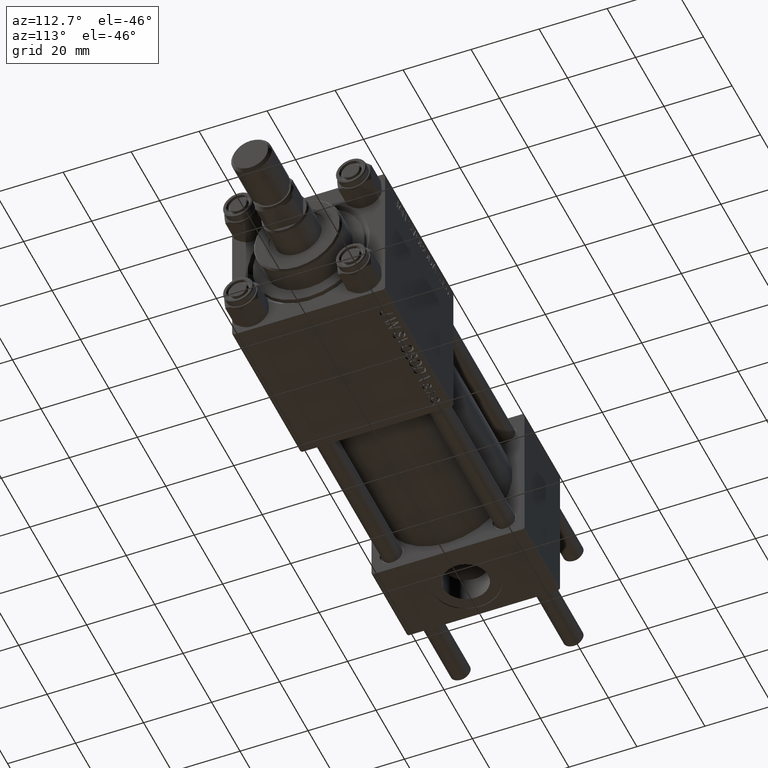
[diagram: clean part render]
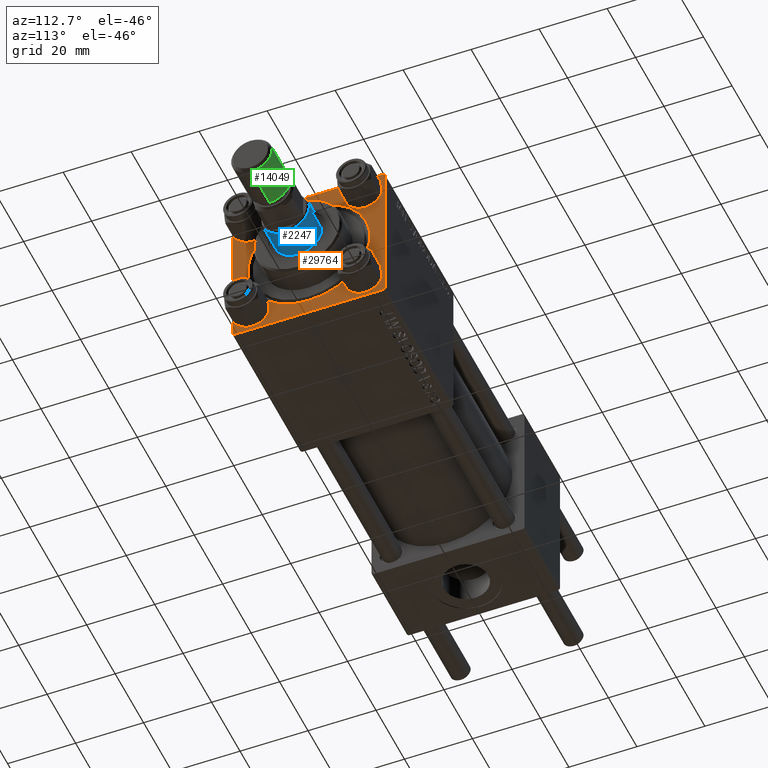
[diagram: same view with three faces highlighted in distinct colors, each labeled with its STEP entity id]
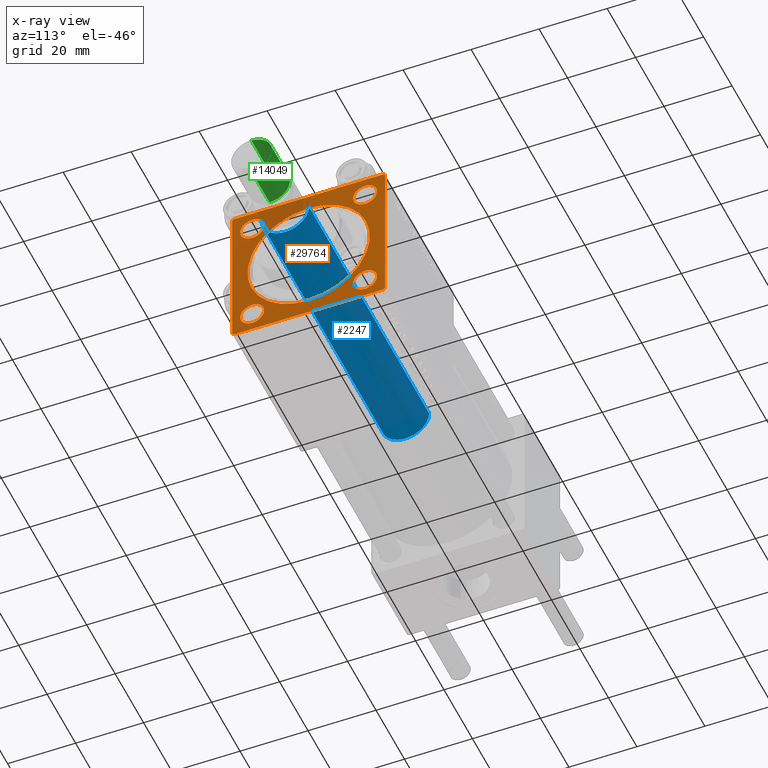
[diagram: x-ray of the same camera — body ghosted, the three highlighted faces saturated]
A machine part, auxiliary view with three faces highlighted in distinct colors.
The next image is the same camera in x-ray (body ghosted, the three faces saturated) — at least one of them is partly hidden behind the body in this view.
Their STEP definitions:

[orange] entity #29764 — the highlighted planar face has unit normal (-1, 0, 0).
#218 = CARTESIAN_POINT ( 'NONE',  ( 123.0000000000000142, 2.204364238465235822E-15, 18.00000000000000355 ) ) ;
#858 = EDGE_CURVE ( 'NONE', #48951, #47986, #3056, .T. ) ;
#1678 = DIRECTION ( 'NONE',  ( -1.000000000000000000, 0.000000000000000000, -0.000000000000000000 ) ) ;
#1804 = CARTESIAN_POINT ( 'NONE',  ( 123.0000000000000142, 16.59999999999999787, -20.10000000000003340 ) ) ;
#2501 = CIRCLE ( 'NONE', #9803, 3.500000000000031086 ) ;
#2505 = CARTESIAN_POINT ( 'NONE',  ( 123.0000000000000142, 16.59999999999999787, -13.09999999999997300 ) ) ;
#2852 = VECTOR ( 'NONE', #12316, 1000.000000000000000 ) ;
#3056 = CIRCLE ( 'NONE', #46136, 3.500000000000031086 ) ;
#3155 = DIRECTION ( 'NONE',  ( 0.000000000000000000, -1.000000000000000000, -7.709882115452476934E-17 ) ) ;
#3438 = DIRECTION ( 'NONE',  ( 0.000000000000000000, 0.000000000000000000, 1.000000000000000000 ) ) ;
#4605 = CARTESIAN_POINT ( 'NONE',  ( 123.0000000000000142, -22.49999999999999645, 22.00000000000000711 ) ) ;
#4726 = VERTEX_POINT ( 'NONE', #39717 ) ;
#5089 = FACE_OUTER_BOUND ( 'NONE', #37845, .T. ) ;
#5372 = ORIENTED_EDGE ( 'NONE', *, *, #8153, .T. ) ;
#5396 = CARTESIAN_POINT ( 'NONE',  ( 123.0000000000000142, 0.000000000000000000, 0.000000000000000000 ) ) ;
#5640 = CARTESIAN_POINT ( 'NONE',  ( 123.0000000000000142, -16.59999999999999076, -16.60000000000000853 ) ) ;
#5824 = FACE_BOUND ( 'NONE', #18987, .T. ) ;
#5963 = LINE ( 'NONE', #6454, #20652 ) ;
#6454 = CARTESIAN_POINT ( 'NONE',  ( 123.0000000000000142, -22.49999999999999645, 22.49999999999999289 ) ) ;
#6857 = CIRCLE ( 'NONE', #48261, 3.500000000000031086 ) ;
#7594 = DIRECTION ( 'NONE',  ( 0.000000000000000000, 0.7071067811865425767, -0.7071067811865525687 ) ) ;
#7666 = VERTEX_POINT ( 'NONE', #41502 ) ;
#7851 = CARTESIAN_POINT ( 'NONE',  ( 123.0000000000000142, -21.99999999999998224, -22.50000000000000000 ) ) ;
#8153 = EDGE_CURVE ( 'NONE', #4726, #25916, #31740, .T. ) ;
#8697 = EDGE_CURVE ( 'NONE', #22480, #7666, #24426, .T. ) ;
#8888 = VERTEX_POINT ( 'NONE', #1804 ) ;
#9149 = LINE ( 'NONE', #24655, #10835 ) ;
#9356 = LINE ( 'NONE', #10271, #48504 ) ;
#9803 = AXIS2_PLACEMENT_3D ( 'NONE', #26314, #38025, #10564 ) ;
#10183 = CARTESIAN_POINT ( 'NONE',  ( 123.0000000000000142, 0.000000000000000000, 0.000000000000000000 ) ) ;
#10271 = CARTESIAN_POINT ( 'NONE',  ( 123.0000000000000142, 22.50000000000000355, -22.49999999999999645 ) ) ;
#10525 = ORIENTED_EDGE ( 'NONE', *, *, #28028, .T. ) ;
#10564 = DIRECTION ( 'NONE',  ( 0.000000000000000000, 0.000000000000000000, 1.000000000000000000 ) ) ;
#10835 = VECTOR ( 'NONE', #43765, 1000.000000000000000 ) ;
#12316 = DIRECTION ( 'NONE',  ( -0.000000000000000000, 0.7071067811865573427, 0.7071067811865378028 ) ) ;
#12348 = AXIS2_PLACEMENT_3D ( 'NONE', #5640, #21394, #16575 ) ;
#13031 = CARTESIAN_POINT ( 'NONE',  ( 123.0000000000000142, -16.59999999999999076, -20.10000000000003695 ) ) ;
#13321 = EDGE_CURVE ( 'NONE', #8888, #50221, #2501, .T. ) ;
#14105 = ORIENTED_EDGE ( 'NONE', *, *, #43058, .T. ) ;
#14402 = CIRCLE ( 'NONE', #37150, 3.500000000000031086 ) ;
#14746 = DIRECTION ( 'NONE',  ( -1.000000000000000000, 0.000000000000000000, -0.000000000000000000 ) ) ;
#15387 = VERTEX_POINT ( 'NONE', #27909 ) ;
#15608 = CIRCLE ( 'NONE', #12348, 3.500000000000031086 ) ;
#15788 = DIRECTION ( 'NONE',  ( -0.000000000000000000, -0.7071067811865573427, -0.7071067811865378028 ) ) ;
#16439 = ORIENTED_EDGE ( 'NONE', *, *, #37796, .T. ) ;
#16472 = VERTEX_POINT ( 'NONE', #21689 ) ;
#16575 = DIRECTION ( 'NONE',  ( 0.000000000000000000, 0.000000000000000000, 1.000000000000000000 ) ) ;
#16636 = EDGE_CURVE ( 'NONE', #39798, #16472, #38464, .T. ) ;
#16728 = ORIENTED_EDGE ( 'NONE', *, *, #25736, .T. ) ;
#16926 = EDGE_CURVE ( 'NONE', #42251, #24505, #15608, .T. ) ;
#17017 = FACE_BOUND ( 'NONE', #30584, .T. ) ;
#17198 = VECTOR ( 'NONE', #34381, 1000.000000000000000 ) ;
#17288 = CARTESIAN_POINT ( 'NONE',  ( 123.0000000000000142, -16.59999999999999076, 20.10000000000003695 ) ) ;
#17436 = LINE ( 'NONE', #32952, #33145 ) ;
#17518 = DIRECTION ( 'NONE',  ( 0.000000000000000000, 0.000000000000000000, 1.000000000000000000 ) ) ;
#17857 = EDGE_CURVE ( 'NONE', #33805, #18382, #48167, .T. ) ;
#17905 = EDGE_LOOP ( 'NONE', ( #45095, #14105 ) ) ;
#17922 = CARTESIAN_POINT ( 'NONE',  ( 123.0000000000000142, 0.000000000000000000, -18.00000000000000355 ) ) ;
#18382 = VERTEX_POINT ( 'NONE', #218 ) ;
#18987 = EDGE_LOOP ( 'NONE', ( #23054, #35580 ) ) ;
#19385 = CARTESIAN_POINT ( 'NONE',  ( 123.0000000000000142, 22.00000000000000355, -22.49999999999999645 ) ) ;
#19695 = ORIENTED_EDGE ( 'NONE', *, *, #23823, .T. ) ;
#20194 = LINE ( 'NONE', #47171, #2852 ) ;
#20652 = VECTOR ( 'NONE', #21466, 1000.000000000000000 ) ;
#21355 = CARTESIAN_POINT ( 'NONE',  ( 123.0000000000000142, 16.59999999999999787, -16.60000000000000497 ) ) ;
#21394 = DIRECTION ( 'NONE',  ( -1.000000000000000000, 0.000000000000000000, -0.000000000000000000 ) ) ;
#21466 = DIRECTION ( 'NONE',  ( 0.000000000000000000, 0.000000000000000000, -1.000000000000000000 ) ) ;
#21689 = CARTESIAN_POINT ( 'NONE',  ( 123.0000000000000142, 22.50000000000000355, -21.99999999999999645 ) ) ;
#22040 = DIRECTION ( 'NONE',  ( 0.000000000000000000, 0.000000000000000000, 1.000000000000000000 ) ) ;
#22395 = CARTESIAN_POINT ( 'NONE',  ( 123.0000000000000142, -16.59999999999999076, 13.09999999999997655 ) ) ;
#22480 = VERTEX_POINT ( 'NONE', #47365 ) ;
#22957 = ORIENTED_EDGE ( 'NONE', *, *, #13321, .T. ) ;
#23054 = ORIENTED_EDGE ( 'NONE', *, *, #49269, .T. ) ;
#23371 = CIRCLE ( 'NONE', #34760, 18.00000000000000355 ) ;
#23823 = EDGE_CURVE ( 'NONE', #39798, #47423, #9149, .T. ) ;
#23932 = ORIENTED_EDGE ( 'NONE', *, *, #34009, .T. ) ;
#24253 = EDGE_LOOP ( 'NONE', ( #23932, #32677 ) ) ;
#24426 = LINE ( 'NONE', #4605, #50310 ) ;
#24505 = VERTEX_POINT ( 'NONE', #13031 ) ;
#24655 = CARTESIAN_POINT ( 'NONE',  ( 123.0000000000000142, 21.99999999999996092, 22.50000000000000355 ) ) ;
#25234 = EDGE_CURVE ( 'NONE', #7666, #4726, #5963, .T. ) ;
#25736 = EDGE_CURVE ( 'NONE', #50221, #8888, #6857, .T. ) ;
#25916 = VERTEX_POINT ( 'NONE', #7851 ) ;
#26001 = CARTESIAN_POINT ( 'NONE',  ( 123.0000000000000142, 22.50000000000000355, 22.50000000000000355 ) ) ;
#26314 = CARTESIAN_POINT ( 'NONE',  ( 123.0000000000000142, 16.59999999999999787, -16.60000000000000497 ) ) ;
#27366 = CARTESIAN_POINT ( 'NONE',  ( 123.0000000000000142, -16.59999999999999076, -13.09999999999997655 ) ) ;
#27909 = CARTESIAN_POINT ( 'NONE',  ( 123.0000000000000142, 16.59999999999999787, 13.09999999999997300 ) ) ;
#28028 = EDGE_CURVE ( 'NONE', #47106, #16472, #20194, .T. ) ;
#28198 = PLANE ( 'NONE',  #32971 ) ;
#28389 = DIRECTION ( 'NONE',  ( 0.000000000000000000, -1.000000000000000000, -2.312964634635742957E-16 ) ) ;
#28701 = DIRECTION ( 'NONE',  ( -0.000000000000000000, 0.000000000000000000, 1.000000000000000000 ) ) ;
#28744 = ORIENTED_EDGE ( 'NONE', *, *, #34651, .T. ) ;
#29005 = AXIS2_PLACEMENT_3D ( 'NONE', #44645, #36754, #36503 ) ;
#29103 = CARTESIAN_POINT ( 'NONE',  ( 123.0000000000000142, 16.59999999999999787, 16.60000000000000497 ) ) ;
#29243 = AXIS2_PLACEMENT_3D ( 'NONE', #49262, #42141, #22040 ) ;
#29517 = CARTESIAN_POINT ( 'NONE',  ( 123.0000000000000142, 22.50000000000000355, 21.99999999999997513 ) ) ;
#29764 = ADVANCED_FACE ( 'NONE', ( #5824, #17017, #44253, #32278, #47560, #5089 ), #28198, .F. ) ;
#30584 = EDGE_LOOP ( 'NONE', ( #22957, #16728 ) ) ;
#31209 = EDGE_CURVE ( 'NONE', #47106, #25916, #9356, .T. ) ;
#31740 = LINE ( 'NONE', #46513, #33178 ) ;
#32278 = FACE_BOUND ( 'NONE', #24253, .T. ) ;
#32530 = CARTESIAN_POINT ( 'NONE',  ( 123.0000000000000142, 0.000000000000000000, 0.000000000000000000 ) ) ;
#32677 = ORIENTED_EDGE ( 'NONE', *, *, #858, .T. ) ;
#32952 = CARTESIAN_POINT ( 'NONE',  ( 123.0000000000000142, 22.50000000000000355, 22.50000000000000355 ) ) ;
#32971 = AXIS2_PLACEMENT_3D ( 'NONE', #32530, #48311, #28701 ) ;
#33145 = VECTOR ( 'NONE', #28389, 1000.000000000000000 ) ;
#33178 = VECTOR ( 'NONE', #7594, 999.9999999999998863 ) ;
#33805 = VERTEX_POINT ( 'NONE', #17922 ) ;
#34009 = EDGE_CURVE ( 'NONE', #47986, #48951, #48579, .T. ) ;
#34381 = DIRECTION ( 'NONE',  ( 0.000000000000000000, 0.000000000000000000, -1.000000000000000000 ) ) ;
#34651 = EDGE_CURVE ( 'NONE', #47423, #22480, #17436, .T. ) ;
#34760 = AXIS2_PLACEMENT_3D ( 'NONE', #10183, #14746, #41231 ) ;
#34944 = CIRCLE ( 'NONE', #29243, 3.500000000000031086 ) ;
#35108 = CARTESIAN_POINT ( 'NONE',  ( 123.0000000000000142, 21.99999999999996092, 22.50000000000000355 ) ) ;
#35498 = CARTESIAN_POINT ( 'NONE',  ( 123.0000000000000142, -16.59999999999999076, 16.60000000000000853 ) ) ;
#35580 = ORIENTED_EDGE ( 'NONE', *, *, #16926, .T. ) ;
#36248 = DIRECTION ( 'NONE',  ( -1.000000000000000000, 0.000000000000000000, -0.000000000000000000 ) ) ;
#36503 = DIRECTION ( 'NONE',  ( 0.000000000000000000, 0.000000000000000000, 1.000000000000000000 ) ) ;
#36754 = DIRECTION ( 'NONE',  ( -1.000000000000000000, 0.000000000000000000, -0.000000000000000000 ) ) ;
#37150 = AXIS2_PLACEMENT_3D ( 'NONE', #29103, #36248, #47705 ) ;
#37796 = EDGE_CURVE ( 'NONE', #38109, #15387, #46094, .T. ) ;
#37845 = EDGE_LOOP ( 'NONE', ( #41774, #5372, #42192, #10525, #41081, #19695, #28744, #38311 ) ) ;
#37895 = EDGE_CURVE ( 'NONE', #15387, #38109, #14402, .T. ) ;
#38025 = DIRECTION ( 'NONE',  ( -1.000000000000000000, 0.000000000000000000, -0.000000000000000000 ) ) ;
#38109 = VERTEX_POINT ( 'NONE', #39524 ) ;
#38277 = DIRECTION ( 'NONE',  ( -1.000000000000000000, 0.000000000000000000, -0.000000000000000000 ) ) ;
#38311 = ORIENTED_EDGE ( 'NONE', *, *, #8697, .T. ) ;
#38464 = LINE ( 'NONE', #26001, #17198 ) ;
#39190 = AXIS2_PLACEMENT_3D ( 'NONE', #5396, #48140, #44079 ) ;
#39524 = CARTESIAN_POINT ( 'NONE',  ( 123.0000000000000142, 16.59999999999999787, 20.10000000000003340 ) ) ;
#39717 = CARTESIAN_POINT ( 'NONE',  ( 123.0000000000000142, -22.49999999999999645, -21.99999999999997868 ) ) ;
#39798 = VERTEX_POINT ( 'NONE', #29517 ) ;
#40444 = AXIS2_PLACEMENT_3D ( 'NONE', #43123, #38277, #3438 ) ;
#40943 = DIRECTION ( 'NONE',  ( -1.000000000000000000, 0.000000000000000000, -0.000000000000000000 ) ) ;
#41081 = ORIENTED_EDGE ( 'NONE', *, *, #16636, .F. ) ;
#41231 = DIRECTION ( 'NONE',  ( 0.000000000000000000, 0.000000000000000000, 1.000000000000000000 ) ) ;
#41502 = CARTESIAN_POINT ( 'NONE',  ( 123.0000000000000142, -22.49999999999999645, 22.00000000000000711 ) ) ;
#41774 = ORIENTED_EDGE ( 'NONE', *, *, #25234, .T. ) ;
#42141 = DIRECTION ( 'NONE',  ( -1.000000000000000000, 0.000000000000000000, -0.000000000000000000 ) ) ;
#42192 = ORIENTED_EDGE ( 'NONE', *, *, #31209, .F. ) ;
#42251 = VERTEX_POINT ( 'NONE', #27366 ) ;
#43058 = EDGE_CURVE ( 'NONE', #18382, #33805, #23371, .T. ) ;
#43123 = CARTESIAN_POINT ( 'NONE',  ( 123.0000000000000142, -16.59999999999999076, 16.60000000000000853 ) ) ;
#43765 = DIRECTION ( 'NONE',  ( 0.000000000000000000, -0.7071067811865573427, 0.7071067811865378028 ) ) ;
#43912 = DIRECTION ( 'NONE',  ( 0.000000000000000000, 0.000000000000000000, 1.000000000000000000 ) ) ;
#44079 = DIRECTION ( 'NONE',  ( 0.000000000000000000, 0.000000000000000000, 1.000000000000000000 ) ) ;
#44253 = FACE_BOUND ( 'NONE', #47074, .T. ) ;
#44645 = CARTESIAN_POINT ( 'NONE',  ( 123.0000000000000142, 16.59999999999999787, 16.60000000000000497 ) ) ;
#45095 = ORIENTED_EDGE ( 'NONE', *, *, #17857, .T. ) ;
#46094 = CIRCLE ( 'NONE', #29005, 3.500000000000031086 ) ;
#46136 = AXIS2_PLACEMENT_3D ( 'NONE', #35498, #1678, #43912 ) ;
#46513 = CARTESIAN_POINT ( 'NONE',  ( 123.0000000000000142, -21.99999999999999645, -22.50000000000000000 ) ) ;
#47074 = EDGE_LOOP ( 'NONE', ( #49320, #16439 ) ) ;
#47106 = VERTEX_POINT ( 'NONE', #19385 ) ;
#47171 = CARTESIAN_POINT ( 'NONE',  ( 123.0000000000000142, 22.50000000000000355, -22.00000000000001066 ) ) ;
#47365 = CARTESIAN_POINT ( 'NONE',  ( 123.0000000000000142, -21.99999999999998224, 22.49999999999999289 ) ) ;
#47423 = VERTEX_POINT ( 'NONE', #35108 ) ;
#47560 = FACE_BOUND ( 'NONE', #17905, .T. ) ;
#47705 = DIRECTION ( 'NONE',  ( 0.000000000000000000, 0.000000000000000000, 1.000000000000000000 ) ) ;
#47986 = VERTEX_POINT ( 'NONE', #22395 ) ;
#48140 = DIRECTION ( 'NONE',  ( -1.000000000000000000, 0.000000000000000000, -0.000000000000000000 ) ) ;
#48167 = CIRCLE ( 'NONE', #39190, 18.00000000000000355 ) ;
#48261 = AXIS2_PLACEMENT_3D ( 'NONE', #21355, #40943, #17518 ) ;
#48311 = DIRECTION ( 'NONE',  ( -1.000000000000000000, 0.000000000000000000, -0.000000000000000000 ) ) ;
#48504 = VECTOR ( 'NONE', #3155, 1000.000000000000000 ) ;
#48579 = CIRCLE ( 'NONE', #40444, 3.500000000000031086 ) ;
#48951 = VERTEX_POINT ( 'NONE', #17288 ) ;
#49262 = CARTESIAN_POINT ( 'NONE',  ( 123.0000000000000142, -16.59999999999999076, -16.60000000000000853 ) ) ;
#49269 = EDGE_CURVE ( 'NONE', #24505, #42251, #34944, .T. ) ;
#49320 = ORIENTED_EDGE ( 'NONE', *, *, #37895, .T. ) ;
#50221 = VERTEX_POINT ( 'NONE', #2505 ) ;
#50310 = VECTOR ( 'NONE', #15788, 1000.000000000000000 ) ;

[blue] entity #2247 — the highlighted cylindrical surface (edge-blend (fillet) strip) has radius 7 mm, axis along (-1, 0, 0).
#1962 = CARTESIAN_POINT ( 'NONE',  ( 7.000000000000000000, 8.572527594031473190E-16, 114.4999999999999858 ) ) ;
#2247 = ADVANCED_FACE ( 'NONE', ( #37123 ), #5614, .T. ) ;
#3197 = DIRECTION ( 'NONE',  ( 0.000000000000000000, 0.000000000000000000, -1.000000000000000000 ) ) ;
#5614 = CYLINDRICAL_SURFACE ( 'NONE', #42097, 7.000000000000000000 ) ;
#5984 = VERTEX_POINT ( 'NONE', #25346 ) ;
#9326 = AXIS2_PLACEMENT_3D ( 'NONE', #38627, #19290, #38378 ) ;
#12311 = VECTOR ( 'NONE', #46046, 1000.000000000000000 ) ;
#13238 = DIRECTION ( 'NONE',  ( -1.000000000000000000, 0.000000000000000000, 0.000000000000000000 ) ) ;
#13994 = CARTESIAN_POINT ( 'NONE',  ( 7.000000000000000000, 8.572527594031473190E-16, 115.0000000000000000 ) ) ;
#14313 = EDGE_LOOP ( 'NONE', ( #40201, #17507, #44286, #42993 ) ) ;
#15248 = CARTESIAN_POINT ( 'NONE',  ( -7.000000000000000000, 0.000000000000000000, 115.0000000000000000 ) ) ;
#16038 = EDGE_CURVE ( 'NONE', #38933, #45101, #42236, .T. ) ;
#17507 = ORIENTED_EDGE ( 'NONE', *, *, #22688, .T. ) ;
#17814 = EDGE_CURVE ( 'NONE', #38933, #38508, #22128, .T. ) ;
#19290 = DIRECTION ( 'NONE',  ( 0.000000000000000000, 0.000000000000000000, 1.000000000000000000 ) ) ;
#21125 = DIRECTION ( 'NONE',  ( -0.000000000000000000, -0.000000000000000000, -1.000000000000000000 ) ) ;
#22128 = CIRCLE ( 'NONE', #28631, 7.000000000000000000 ) ;
#22129 = DIRECTION ( 'NONE',  ( -0.000000000000000000, -0.000000000000000000, -1.000000000000000000 ) ) ;
#22688 = EDGE_CURVE ( 'NONE', #38508, #5984, #30002, .T. ) ;
#25346 = CARTESIAN_POINT ( 'NONE',  ( 7.000000000000000000, 8.572527594031473190E-16, 30.00000000000000000 ) ) ;
#25424 = CARTESIAN_POINT ( 'NONE',  ( 0.000000000000000000, 0.000000000000000000, 115.0000000000000000 ) ) ;
#26648 = EDGE_CURVE ( 'NONE', #5984, #45101, #31244, .T. ) ;
#28631 = AXIS2_PLACEMENT_3D ( 'NONE', #38032, #3197, #30642 ) ;
#30002 = LINE ( 'NONE', #13994, #31944 ) ;
#30642 = DIRECTION ( 'NONE',  ( 1.000000000000000000, 0.000000000000000000, 0.000000000000000000 ) ) ;
#31244 = CIRCLE ( 'NONE', #9326, 7.000000000000000000 ) ;
#31944 = VECTOR ( 'NONE', #22129, 1000.000000000000000 ) ;
#35322 = CARTESIAN_POINT ( 'NONE',  ( -7.000000000000000000, 0.000000000000000000, 30.00000000000000000 ) ) ;
#37123 = FACE_OUTER_BOUND ( 'NONE', #14313, .T. ) ;
#38032 = CARTESIAN_POINT ( 'NONE',  ( 0.000000000000000000, 0.000000000000000000, 114.4999999999999858 ) ) ;
#38378 = DIRECTION ( 'NONE',  ( 1.000000000000000000, 0.000000000000000000, 0.000000000000000000 ) ) ;
#38508 = VERTEX_POINT ( 'NONE', #1962 ) ;
#38627 = CARTESIAN_POINT ( 'NONE',  ( 0.000000000000000000, 0.000000000000000000, 30.00000000000000000 ) ) ;
#38933 = VERTEX_POINT ( 'NONE', #45495 ) ;
#40201 = ORIENTED_EDGE ( 'NONE', *, *, #17814, .T. ) ;
#42097 = AXIS2_PLACEMENT_3D ( 'NONE', #25424, #21125, #13238 ) ;
#42236 = LINE ( 'NONE', #15248, #12311 ) ;
#42993 = ORIENTED_EDGE ( 'NONE', *, *, #16038, .F. ) ;
#44286 = ORIENTED_EDGE ( 'NONE', *, *, #26648, .T. ) ;
#45101 = VERTEX_POINT ( 'NONE', #35322 ) ;
#45495 = CARTESIAN_POINT ( 'NONE',  ( -7.000000000000000000, 0.000000000000000000, 114.4999999999999858 ) ) ;
#46046 = DIRECTION ( 'NONE',  ( -0.000000000000000000, -0.000000000000000000, -1.000000000000000000 ) ) ;

[green] entity #14049 — the highlighted cylindrical surface (edge-blend (fillet) strip) has radius 6 mm, axis along (1, -0, 0).
#1803 = CARTESIAN_POINT ( 'NONE',  ( 6.000000000000000888, 7.347880794884120722E-16, 0.8000000000000055955 ) ) ;
#2116 = EDGE_LOOP ( 'NONE', ( #38813, #32552, #39033, #49084 ) ) ;
#3267 = VERTEX_POINT ( 'NONE', #3742 ) ;
#3742 = CARTESIAN_POINT ( 'NONE',  ( 6.000000000000000888, 7.347880794884120722E-16, 13.50000000000000000 ) ) ;
#6452 = VERTEX_POINT ( 'NONE', #1803 ) ;
#6531 = CIRCLE ( 'NONE', #14608, 6.000000000000000888 ) ;
#8221 = AXIS2_PLACEMENT_3D ( 'NONE', #16206, #28143, #24599 ) ;
#10915 = AXIS2_PLACEMENT_3D ( 'NONE', #38291, #27071, #11066 ) ;
#11066 = DIRECTION ( 'NONE',  ( 1.000000000000000000, 0.000000000000000000, 0.000000000000000000 ) ) ;
#12683 = EDGE_CURVE ( 'NONE', #6452, #28249, #6531, .T. ) ;
#14049 = ADVANCED_FACE ( 'NONE', ( #35288 ), #28401, .T. ) ;
#14135 = CIRCLE ( 'NONE', #10915, 6.000000000000000888 ) ;
#14608 = AXIS2_PLACEMENT_3D ( 'NONE', #20376, #47600, #23941 ) ;
#15573 = CARTESIAN_POINT ( 'NONE',  ( -6.000000000000000888, 0.000000000000000000, 13.50000000000000000 ) ) ;
#16206 = CARTESIAN_POINT ( 'NONE',  ( 0.000000000000000000, 0.000000000000000000, 13.50000000000000000 ) ) ;
#17012 = EDGE_CURVE ( 'NONE', #35168, #28249, #18553, .T. ) ;
#18553 = LINE ( 'NONE', #49357, #19681 ) ;
#19681 = VECTOR ( 'NONE', #45297, 1000.000000000000000 ) ;
#20088 = VECTOR ( 'NONE', #29523, 1000.000000000000000 ) ;
#20376 = CARTESIAN_POINT ( 'NONE',  ( 0.000000000000000000, 0.000000000000000000, 0.8000000000000055955 ) ) ;
#21841 = EDGE_CURVE ( 'NONE', #3267, #35168, #14135, .T. ) ;
#23941 = DIRECTION ( 'NONE',  ( 1.000000000000000000, 0.000000000000000000, 0.000000000000000000 ) ) ;
#24599 = DIRECTION ( 'NONE',  ( -1.000000000000000000, 0.000000000000000000, 0.000000000000000000 ) ) ;
#26212 = CARTESIAN_POINT ( 'NONE',  ( 6.000000000000000888, 7.347880794884120722E-16, 13.50000000000000000 ) ) ;
#27071 = DIRECTION ( 'NONE',  ( 0.000000000000000000, 0.000000000000000000, 1.000000000000000000 ) ) ;
#28143 = DIRECTION ( 'NONE',  ( -0.000000000000000000, -0.000000000000000000, -1.000000000000000000 ) ) ;
#28249 = VERTEX_POINT ( 'NONE', #40046 ) ;
#28401 = CYLINDRICAL_SURFACE ( 'NONE', #8221, 6.000000000000000888 ) ;
#29523 = DIRECTION ( 'NONE',  ( -0.000000000000000000, -0.000000000000000000, -1.000000000000000000 ) ) ;
#32552 = ORIENTED_EDGE ( 'NONE', *, *, #37450, .T. ) ;
#35168 = VERTEX_POINT ( 'NONE', #15573 ) ;
#35288 = FACE_OUTER_BOUND ( 'NONE', #2116, .T. ) ;
#37450 = EDGE_CURVE ( 'NONE', #3267, #6452, #45576, .T. ) ;
#38291 = CARTESIAN_POINT ( 'NONE',  ( 0.000000000000000000, 0.000000000000000000, 13.50000000000000000 ) ) ;
#38813 = ORIENTED_EDGE ( 'NONE', *, *, #21841, .F. ) ;
#39033 = ORIENTED_EDGE ( 'NONE', *, *, #12683, .T. ) ;
#40046 = CARTESIAN_POINT ( 'NONE',  ( -6.000000000000000888, 0.000000000000000000, 0.8000000000000055955 ) ) ;
#45297 = DIRECTION ( 'NONE',  ( -0.000000000000000000, -0.000000000000000000, -1.000000000000000000 ) ) ;
#45576 = LINE ( 'NONE', #26212, #20088 ) ;
#47600 = DIRECTION ( 'NONE',  ( -0.000000000000000000, -0.000000000000000000, 1.000000000000000000 ) ) ;
#49084 = ORIENTED_EDGE ( 'NONE', *, *, #17012, .F. ) ;
#49357 = CARTESIAN_POINT ( 'NONE',  ( -6.000000000000000888, 0.000000000000000000, 13.50000000000000000 ) ) ;